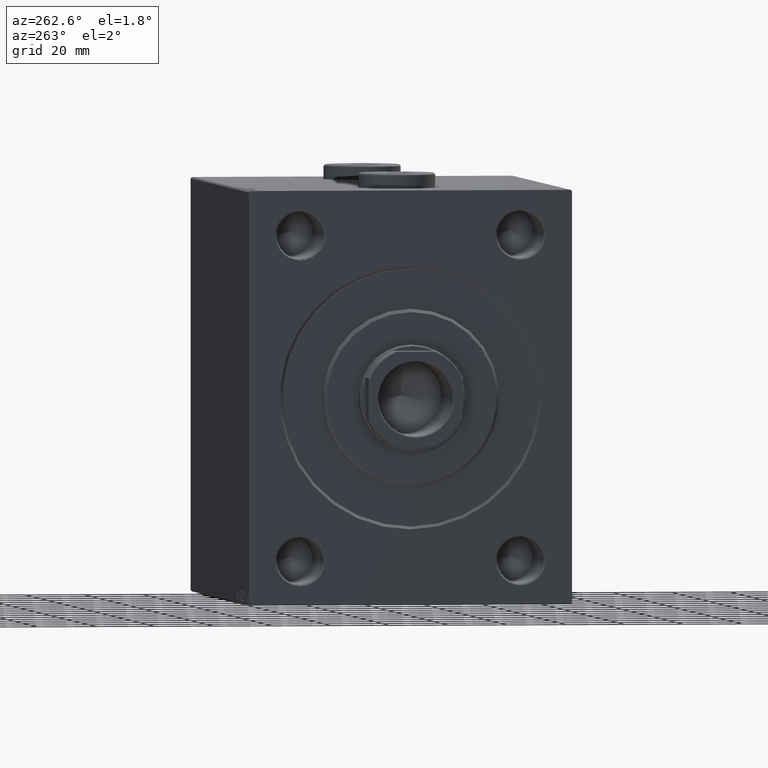
[diagram: clean part render]
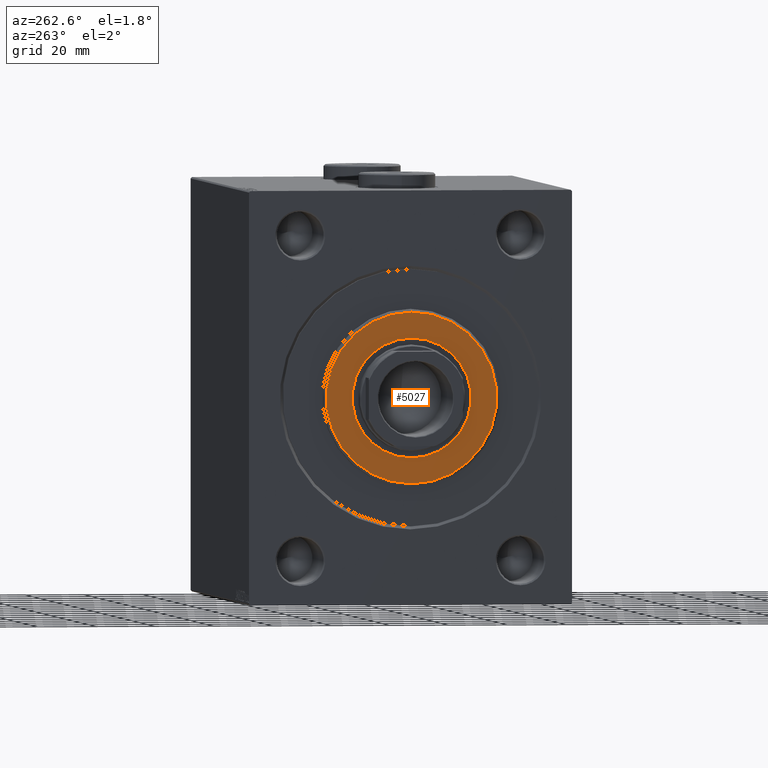
[diagram: same view with one face highlighted and labeled with its STEP entity id]
A machine part, auxiliary view. The second image highlights one B-rep face of the part: STEP entity #5027.
In plain terms, the highlighted planar face has unit normal (-1, 0, 0).
Its self-contained STEP definition (entity closure, byte-faithful):
#484 = AXIS2_PLACEMENT_3D ( 'NONE', #36605, #43093, #11884 ) ;
#1962 = CIRCLE ( 'NONE', #484, 20.25000000000000000 ) ;
#2361 = ORIENTED_EDGE ( 'NONE', *, *, #45015, .T. ) ;
#2788 = EDGE_CURVE ( 'NONE', #17710, #9847, #6988, .T. ) ;
#4093 = DIRECTION ( 'NONE',  ( 1.000000000000000000, 0.000000000000000000, 0.000000000000000000 ) ) ;
#4563 = CARTESIAN_POINT ( 'NONE',  ( 3.000000000000000000, 0.000000000000000000, 0.000000000000000000 ) ) ;
#5009 = DIRECTION ( 'NONE',  ( 0.000000000000000000, 0.000000000000000000, -1.000000000000000000 ) ) ;
#5027 = ADVANCED_FACE ( 'NONE', ( #8019, #22334 ), #15631, .T. ) ;
#5383 = EDGE_LOOP ( 'NONE', ( #38738, #21776 ) ) ;
#5987 = DIRECTION ( 'NONE',  ( 1.000000000000000000, -0.000000000000000000, 0.000000000000000000 ) ) ;
#6988 = CIRCLE ( 'NONE', #12883, 20.25000000000000000 ) ;
#7805 = CARTESIAN_POINT ( 'NONE',  ( 3.000000000000000000, 0.000000000000000000, -20.25000000000000000 ) ) ;
#8019 = FACE_OUTER_BOUND ( 'NONE', #27171, .T. ) ;
#9847 = VERTEX_POINT ( 'NONE', #24368 ) ;
#10623 = AXIS2_PLACEMENT_3D ( 'NONE', #40882, #5987, #19617 ) ;
#10933 = EDGE_CURVE ( 'NONE', #9847, #17710, #1962, .T. ) ;
#11884 = DIRECTION ( 'NONE',  ( 0.000000000000000000, 0.000000000000000000, -1.000000000000000000 ) ) ;
#12598 = CARTESIAN_POINT ( 'NONE',  ( 3.000000000000000000, 0.000000000000000000, 0.000000000000000000 ) ) ;
#12883 = AXIS2_PLACEMENT_3D ( 'NONE', #35520, #4093, #42681 ) ;
#13268 = DIRECTION ( 'NONE',  ( 1.000000000000000000, -0.000000000000000000, 0.000000000000000000 ) ) ;
#13325 = ORIENTED_EDGE ( 'NONE', *, *, #26972, .T. ) ;
#15631 = PLANE ( 'NONE',  #18864 ) ;
#15967 = CARTESIAN_POINT ( 'NONE',  ( 3.000000000000000000, 0.000000000000000000, 28.99999999999999289 ) ) ;
#17710 = VERTEX_POINT ( 'NONE', #7805 ) ;
#18356 = CIRCLE ( 'NONE', #34600, 28.99999999999999289 ) ;
#18864 = AXIS2_PLACEMENT_3D ( 'NONE', #4563, #32969, #5009 ) ;
#19617 = DIRECTION ( 'NONE',  ( 0.000000000000000000, 0.000000000000000000, -1.000000000000000000 ) ) ;
#21776 = ORIENTED_EDGE ( 'NONE', *, *, #10933, .F. ) ;
#22334 = FACE_BOUND ( 'NONE', #5383, .T. ) ;
#23457 = VERTEX_POINT ( 'NONE', #15967 ) ;
#23667 = DIRECTION ( 'NONE',  ( 0.000000000000000000, 0.000000000000000000, -1.000000000000000000 ) ) ;
#24368 = CARTESIAN_POINT ( 'NONE',  ( 3.000000000000000000, 2.479909768273390300E-15, 20.25000000000000000 ) ) ;
#26972 = EDGE_CURVE ( 'NONE', #23457, #35647, #18356, .T. ) ;
#27103 = CARTESIAN_POINT ( 'NONE',  ( 3.000000000000000000, 3.612708057484691604E-15, -28.99999999999999289 ) ) ;
#27171 = EDGE_LOOP ( 'NONE', ( #13325, #2361 ) ) ;
#32969 = DIRECTION ( 'NONE',  ( 1.000000000000000000, -0.000000000000000000, 0.000000000000000000 ) ) ;
#34600 = AXIS2_PLACEMENT_3D ( 'NONE', #12598, #13268, #23667 ) ;
#35520 = CARTESIAN_POINT ( 'NONE',  ( 3.000000000000000000, 0.000000000000000000, 0.000000000000000000 ) ) ;
#35647 = VERTEX_POINT ( 'NONE', #27103 ) ;
#36605 = CARTESIAN_POINT ( 'NONE',  ( 3.000000000000000000, 0.000000000000000000, 0.000000000000000000 ) ) ;
#38738 = ORIENTED_EDGE ( 'NONE', *, *, #2788, .F. ) ;
#40882 = CARTESIAN_POINT ( 'NONE',  ( 3.000000000000000000, 0.000000000000000000, 0.000000000000000000 ) ) ;
#42681 = DIRECTION ( 'NONE',  ( 0.000000000000000000, 0.000000000000000000, -1.000000000000000000 ) ) ;
#43093 = DIRECTION ( 'NONE',  ( 1.000000000000000000, 0.000000000000000000, 0.000000000000000000 ) ) ;
#44564 = CIRCLE ( 'NONE', #10623, 28.99999999999999289 ) ;
#45015 = EDGE_CURVE ( 'NONE', #35647, #23457, #44564, .T. ) ;